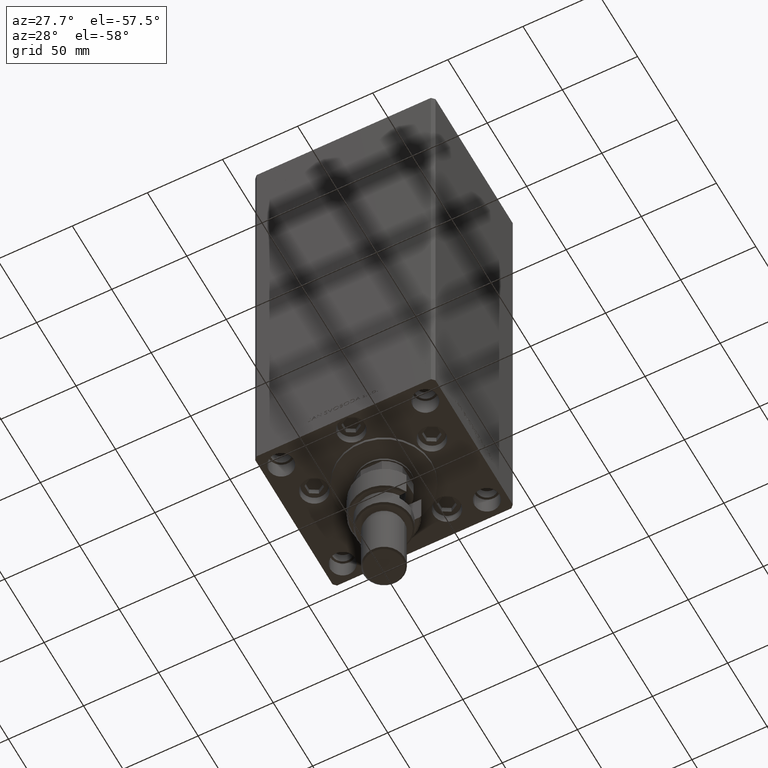
[diagram: clean part render]
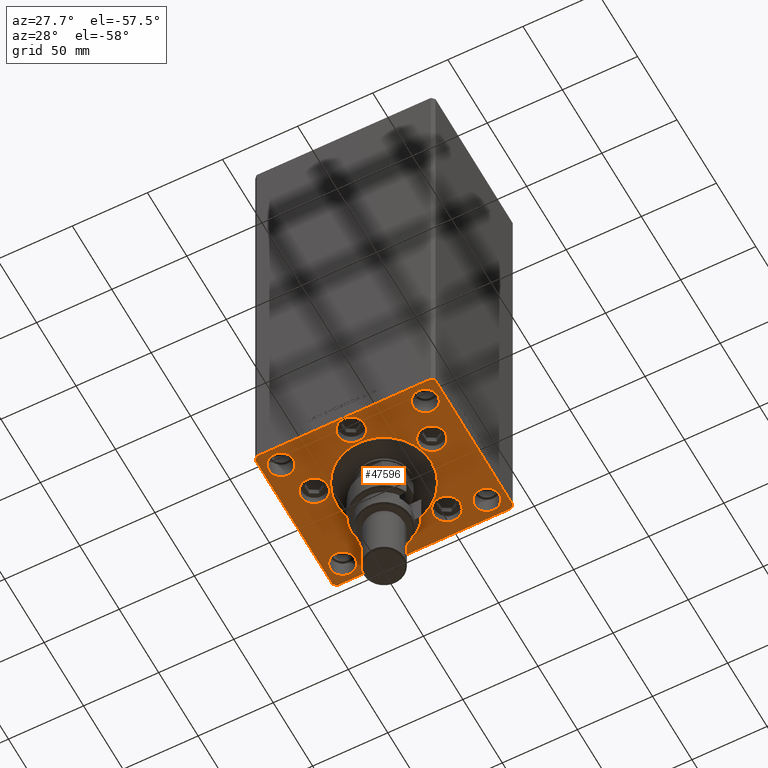
[diagram: same view with one face highlighted and labeled with its STEP entity id]
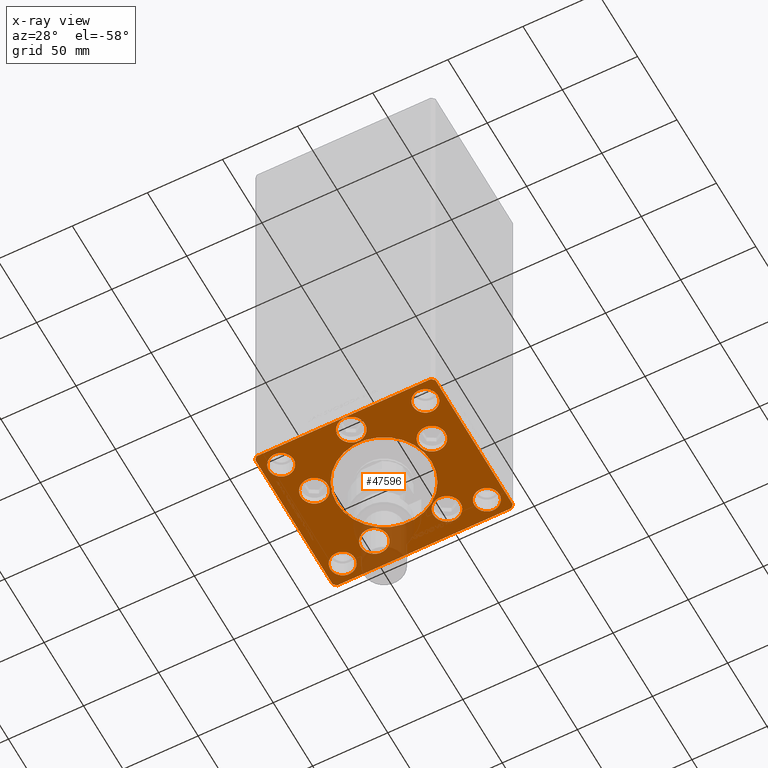
[diagram: x-ray of the same camera — body ghosted, the highlighted face saturated]
A machine part, auxiliary view. The second image highlights one B-rep face of the part: STEP entity #47596.
The next image is the same camera in x-ray: the body ghosted, the highlighted face saturated — about 8% of this face is hidden behind the body in this view.
In plain terms, the highlighted planar face has unit normal (0, 0, -1).
Its self-contained STEP definition (entity closure, byte-faithful):
#6 = AXIS2_PLACEMENT_3D ( 'NONE', #39318, #46713, #35474 ) ;
#232 = DIRECTION ( 'NONE',  ( 0.000000000000000000, 0.000000000000000000, 1.000000000000000000 ) ) ;
#307 = CARTESIAN_POINT ( 'NONE',  ( -48.00000000000000000, 39.00000000000000711, 0.000000000000000000 ) ) ;
#498 = CARTESIAN_POINT ( 'NONE',  ( -60.00000000000000000, 49.00000000000000000, 0.000000000000000000 ) ) ;
#584 = DIRECTION ( 'NONE',  ( 1.000000000000000000, 0.000000000000000000, 0.000000000000000000 ) ) ;
#802 = FACE_BOUND ( 'NONE', #43565, .T. ) ;
#992 = ORIENTED_EDGE ( 'NONE', *, *, #46146, .F. ) ;
#1304 = FACE_BOUND ( 'NONE', #6074, .T. ) ;
#1633 = DIRECTION ( 'NONE',  ( -1.000000000000000000, -2.392722035830078972E-16, 0.000000000000000000 ) ) ;
#1641 = VERTEX_POINT ( 'NONE', #28113 ) ;
#1687 = EDGE_CURVE ( 'NONE', #20185, #29710, #21928, .T. ) ;
#2598 = DIRECTION ( 'NONE',  ( 1.000000000000000000, 0.000000000000000000, 0.000000000000000000 ) ) ;
#2716 = DIRECTION ( 'NONE',  ( -0.7071067811865536790, 0.7071067811865414665, 0.000000000000000000 ) ) ;
#2821 = DIRECTION ( 'NONE',  ( 0.000000000000000000, 0.000000000000000000, 1.000000000000000000 ) ) ;
#3028 = EDGE_CURVE ( 'NONE', #31387, #41270, #18699, .T. ) ;
#3244 = CARTESIAN_POINT ( 'NONE',  ( -56.24999999999999289, 39.00000000000000711, 0.000000000000000000 ) ) ;
#4005 = AXIS2_PLACEMENT_3D ( 'NONE', #33593, #14016, #41978 ) ;
#4160 = EDGE_CURVE ( 'NONE', #42355, #30331, #14699, .T. ) ;
#4307 = DIRECTION ( 'NONE',  ( 1.000000000000000000, 0.000000000000000000, 0.000000000000000000 ) ) ;
#4356 = ORIENTED_EDGE ( 'NONE', *, *, #1687, .F. ) ;
#4408 = DIRECTION ( 'NONE',  ( 0.000000000000000000, 0.000000000000000000, 1.000000000000000000 ) ) ;
#4869 = FACE_BOUND ( 'NONE', #10544, .T. ) ;
#5042 = CIRCLE ( 'NONE', #27762, 9.000000000000001776 ) ;
#5171 = EDGE_CURVE ( 'NONE', #15028, #9731, #16339, .T. ) ;
#5408 = EDGE_LOOP ( 'NONE', ( #27216, #49950 ) ) ;
#5550 = DIRECTION ( 'NONE',  ( 0.000000000000000000, 0.000000000000000000, 1.000000000000000000 ) ) ;
#5791 = CARTESIAN_POINT ( 'NONE',  ( 60.00000000000001421, 49.00000000000002842, 0.000000000000000000 ) ) ;
#5812 = DIRECTION ( 'NONE',  ( 0.7071067811865474617, -0.7071067811865474617, 0.000000000000000000 ) ) ;
#5928 = CARTESIAN_POINT ( 'NONE',  ( 24.19288941894913592, 33.71874999999998579, 0.000000000000000000 ) ) ;
#6030 = AXIS2_PLACEMENT_3D ( 'NONE', #307, #47099, #46618 ) ;
#6074 = EDGE_LOOP ( 'NONE', ( #43419, #48918 ) ) ;
#6170 = DIRECTION ( 'NONE',  ( 0.000000000000000000, 0.000000000000000000, 1.000000000000000000 ) ) ;
#6244 = CARTESIAN_POINT ( 'NONE',  ( 31.50000000000000000, -3.081256486593065689E-15, 0.000000000000000000 ) ) ;
#6814 = VECTOR ( 'NONE', #42282, 1000.000000000000000 ) ;
#7723 = CARTESIAN_POINT ( 'NONE',  ( -57.99999999999998579, 50.99999999999997868, 0.000000000000000000 ) ) ;
#7735 = ORIENTED_EDGE ( 'NONE', *, *, #25390, .F. ) ;
#8063 = ORIENTED_EDGE ( 'NONE', *, *, #35400, .F. ) ;
#8231 = DIRECTION ( 'NONE',  ( 0.000000000000000000, 0.000000000000000000, 1.000000000000000000 ) ) ;
#8463 = ORIENTED_EDGE ( 'NONE', *, *, #45598, .T. ) ;
#8608 = EDGE_CURVE ( 'NONE', #9731, #15028, #20975, .T. ) ;
#8651 = CARTESIAN_POINT ( 'NONE',  ( 39.75000000000000711, -39.00000000000001421, 0.000000000000000000 ) ) ;
#8685 = LINE ( 'NONE', #28781, #9936 ) ;
#8696 = DIRECTION ( 'NONE',  ( 1.000000000000000000, 0.000000000000000000, 0.000000000000000000 ) ) ;
#9422 = CARTESIAN_POINT ( 'NONE',  ( -30.12657522565563539, -13.83333333333332860, 0.000000000000000000 ) ) ;
#9616 = VERTEX_POINT ( 'NONE', #27477 ) ;
#9708 = ORIENTED_EDGE ( 'NONE', *, *, #10223, .T. ) ;
#9731 = VERTEX_POINT ( 'NONE', #8651 ) ;
#9750 = DIRECTION ( 'NONE',  ( 1.000000000000000000, 0.000000000000000000, 0.000000000000000000 ) ) ;
#9903 = CIRCLE ( 'NONE', #23683, 31.50000000000000000 ) ;
#9936 = VECTOR ( 'NONE', #47361, 1000.000000000000000 ) ;
#10003 = CARTESIAN_POINT ( 'NONE',  ( 48.00000000000000000, 39.00000000000000000, 0.000000000000000000 ) ) ;
#10015 = DIRECTION ( 'NONE',  ( 0.000000000000000000, 0.000000000000000000, 1.000000000000000000 ) ) ;
#10223 = EDGE_CURVE ( 'NONE', #30454, #31401, #22039, .T. ) ;
#10523 = ORIENTED_EDGE ( 'NONE', *, *, #21485, .F. ) ;
#10544 = EDGE_LOOP ( 'NONE', ( #4356, #12190 ) ) ;
#10766 = AXIS2_PLACEMENT_3D ( 'NONE', #46894, #8231, #584 ) ;
#10952 = CARTESIAN_POINT ( 'NONE',  ( 39.12657522565563539, -13.83333333333332860, 0.000000000000000000 ) ) ;
#11063 = DIRECTION ( 'NONE',  ( 0.000000000000000000, 0.000000000000000000, 1.000000000000000000 ) ) ;
#11080 = ORIENTED_EDGE ( 'NONE', *, *, #42878, .F. ) ;
#11323 = AXIS2_PLACEMENT_3D ( 'NONE', #5928, #6170, #2598 ) ;
#11470 = CIRCLE ( 'NONE', #39903, 9.000000000000000000 ) ;
#11502 = DIRECTION ( 'NONE',  ( 0.000000000000000000, 0.000000000000000000, 1.000000000000000000 ) ) ;
#11796 = ORIENTED_EDGE ( 'NONE', *, *, #27417, .T. ) ;
#12142 = CIRCLE ( 'NONE', #40579, 9.000000000000001776 ) ;
#12190 = ORIENTED_EDGE ( 'NONE', *, *, #43355, .F. ) ;
#12477 = AXIS2_PLACEMENT_3D ( 'NONE', #10003, #11502, #43027 ) ;
#12841 = ORIENTED_EDGE ( 'NONE', *, *, #8608, .F. ) ;
#12920 = DIRECTION ( 'NONE',  ( 1.000000000000000000, 0.000000000000000000, 0.000000000000000000 ) ) ;
#13138 = EDGE_LOOP ( 'NONE', ( #49214, #17163 ) ) ;
#13234 = DIRECTION ( 'NONE',  ( 1.000000000000000000, 0.000000000000000000, 0.000000000000000000 ) ) ;
#13334 = CARTESIAN_POINT ( 'NONE',  ( -39.12657522565563539, -13.83333333333332860, 0.000000000000000000 ) ) ;
#13733 = ORIENTED_EDGE ( 'NONE', *, *, #31055, .F. ) ;
#13861 = VERTEX_POINT ( 'NONE', #25897 ) ;
#13869 = LINE ( 'NONE', #14119, #18932 ) ;
#14016 = DIRECTION ( 'NONE',  ( 0.000000000000000000, 0.000000000000000000, 1.000000000000000000 ) ) ;
#14119 = CARTESIAN_POINT ( 'NONE',  ( -58.00000000000000711, -51.00000000000002842, 0.000000000000000000 ) ) ;
#14345 = ORIENTED_EDGE ( 'NONE', *, *, #3028, .F. ) ;
#14627 = EDGE_CURVE ( 'NONE', #13861, #9616, #12142, .T. ) ;
#14699 = CIRCLE ( 'NONE', #30939, 8.249999999999992895 ) ;
#15028 = VERTEX_POINT ( 'NONE', #45569 ) ;
#15384 = CIRCLE ( 'NONE', #11323, 9.000000000000001776 ) ;
#15495 = CIRCLE ( 'NONE', #44726, 8.249999999999992895 ) ;
#15562 = LINE ( 'NONE', #49933, #6814 ) ;
#15901 = VERTEX_POINT ( 'NONE', #18155 ) ;
#15939 = VERTEX_POINT ( 'NONE', #7723 ) ;
#16146 = CIRCLE ( 'NONE', #4005, 9.000000000000001776 ) ;
#16241 = CARTESIAN_POINT ( 'NONE',  ( 48.00000000000000000, 39.00000000000000000, 0.000000000000000000 ) ) ;
#16292 = AXIS2_PLACEMENT_3D ( 'NONE', #38509, #38258, #27314 ) ;
#16319 = FACE_BOUND ( 'NONE', #46852, .T. ) ;
#16339 = CIRCLE ( 'NONE', #41538, 8.249999999999992895 ) ;
#16641 = DIRECTION ( 'NONE',  ( 1.000000000000000000, 0.000000000000000000, 0.000000000000000000 ) ) ;
#16787 = DIRECTION ( 'NONE',  ( 0.000000000000000000, 0.000000000000000000, 1.000000000000000000 ) ) ;
#17072 = FACE_BOUND ( 'NONE', #25289, .T. ) ;
#17097 = CIRCLE ( 'NONE', #16292, 31.50000000000000000 ) ;
#17163 = ORIENTED_EDGE ( 'NONE', *, *, #38920, .F. ) ;
#17328 = DIRECTION ( 'NONE',  ( 1.000000000000000000, 0.000000000000000000, 0.000000000000000000 ) ) ;
#17421 = VECTOR ( 'NONE', #1633, 1000.000000000000000 ) ;
#17504 = CARTESIAN_POINT ( 'NONE',  ( -48.00000000000000000, -39.00000000000001421, 0.000000000000000000 ) ) ;
#17838 = EDGE_LOOP ( 'NONE', ( #11796, #27342, #8463, #25478, #9708, #27745, #28530, #48170 ) ) ;
#18002 = VERTEX_POINT ( 'NONE', #9422 ) ;
#18155 = CARTESIAN_POINT ( 'NONE',  ( 9.000000000000000000, -41.50000000000000000, 0.000000000000000000 ) ) ;
#18699 = CIRCLE ( 'NONE', #36630, 8.249999999999992895 ) ;
#18932 = VECTOR ( 'NONE', #25570, 1000.000000000000000 ) ;
#19512 = CARTESIAN_POINT ( 'NONE',  ( -48.12657522565563539, -13.83333333333332682, 0.000000000000000000 ) ) ;
#19676 = DIRECTION ( 'NONE',  ( 0.000000000000000000, 0.000000000000000000, 1.000000000000000000 ) ) ;
#19765 = CARTESIAN_POINT ( 'NONE',  ( 58.00000000000001421, -50.99999999999992184, 0.000000000000000000 ) ) ;
#20170 = CARTESIAN_POINT ( 'NONE',  ( 56.24999999999999289, 39.00000000000000000, 0.000000000000000000 ) ) ;
#20185 = VERTEX_POINT ( 'NONE', #23790 ) ;
#20342 = DIRECTION ( 'NONE',  ( 0.000000000000000000, 0.000000000000000000, 1.000000000000000000 ) ) ;
#20363 = EDGE_CURVE ( 'NONE', #30605, #40355, #9903, .T. ) ;
#20375 = FACE_BOUND ( 'NONE', #13138, .T. ) ;
#20408 = ORIENTED_EDGE ( 'NONE', *, *, #42441, .F. ) ;
#20630 = CIRCLE ( 'NONE', #27155, 9.000000000000001776 ) ;
#20975 = CIRCLE ( 'NONE', #44534, 8.249999999999992895 ) ;
#21212 = CARTESIAN_POINT ( 'NONE',  ( 58.00000000000000000, 51.00000000000000711, 0.000000000000000000 ) ) ;
#21485 = EDGE_CURVE ( 'NONE', #15901, #39721, #48146, .T. ) ;
#21928 = CIRCLE ( 'NONE', #6, 9.000000000000000000 ) ;
#22039 = LINE ( 'NONE', #5791, #26749 ) ;
#22100 = VECTOR ( 'NONE', #50068, 1000.000000000000114 ) ;
#22260 = CARTESIAN_POINT ( 'NONE',  ( 48.00000000000000000, -39.00000000000001421, 0.000000000000000000 ) ) ;
#22320 = CARTESIAN_POINT ( 'NONE',  ( -31.50000000000000000, -6.938893903907228378E-15, 0.000000000000000000 ) ) ;
#22380 = CARTESIAN_POINT ( 'NONE',  ( -39.75000000000000711, -39.00000000000001421, 0.000000000000000000 ) ) ;
#22944 = AXIS2_PLACEMENT_3D ( 'NONE', #40228, #43285, #17328 ) ;
#22990 = DIRECTION ( 'NONE',  ( 0.000000000000000000, 0.000000000000000000, 1.000000000000000000 ) ) ;
#23147 = VERTEX_POINT ( 'NONE', #35196 ) ;
#23493 = DIRECTION ( 'NONE',  ( 1.000000000000000000, 0.000000000000000000, 0.000000000000000000 ) ) ;
#23547 = EDGE_CURVE ( 'NONE', #32256, #1641, #27269, .T. ) ;
#23683 = AXIS2_PLACEMENT_3D ( 'NONE', #39681, #20342, #13234 ) ;
#23790 = CARTESIAN_POINT ( 'NONE',  ( -15.19288941894913592, 33.71874999999998579, 0.000000000000000000 ) ) ;
#23950 = FACE_BOUND ( 'NONE', #45613, .T. ) ;
#24180 = EDGE_CURVE ( 'NONE', #47209, #25235, #13869, .T. ) ;
#25010 = DIRECTION ( 'NONE',  ( 0.000000000000000000, 0.000000000000000000, 1.000000000000000000 ) ) ;
#25025 = VERTEX_POINT ( 'NONE', #26077 ) ;
#25180 = DIRECTION ( 'NONE',  ( 1.000000000000000000, 0.000000000000000000, 0.000000000000000000 ) ) ;
#25235 = VERTEX_POINT ( 'NONE', #47918 ) ;
#25289 = EDGE_LOOP ( 'NONE', ( #10523, #13733 ) ) ;
#25390 = EDGE_CURVE ( 'NONE', #25025, #46654, #39310, .T. ) ;
#25403 = EDGE_CURVE ( 'NONE', #30331, #42355, #48304, .T. ) ;
#25478 = ORIENTED_EDGE ( 'NONE', *, *, #47561, .T. ) ;
#25570 = DIRECTION ( 'NONE',  ( 1.000000000000000000, 9.570888143320313916E-16, 0.000000000000000000 ) ) ;
#25897 = CARTESIAN_POINT ( 'NONE',  ( 33.19288941894913592, 33.71874999999998579, 0.000000000000000000 ) ) ;
#26077 = CARTESIAN_POINT ( 'NONE',  ( 39.75000000000000711, 39.00000000000000000, 0.000000000000000000 ) ) ;
#26147 = EDGE_CURVE ( 'NONE', #31401, #15939, #40793, .T. ) ;
#26185 = EDGE_CURVE ( 'NONE', #45652, #18002, #20630, .T. ) ;
#26749 = VECTOR ( 'NONE', #2716, 1000.000000000000000 ) ;
#27155 = AXIS2_PLACEMENT_3D ( 'NONE', #13334, #10015, #16641 ) ;
#27216 = ORIENTED_EDGE ( 'NONE', *, *, #4160, .F. ) ;
#27269 = LINE ( 'NONE', #46846, #48223 ) ;
#27314 = DIRECTION ( 'NONE',  ( 1.000000000000000000, 0.000000000000000000, 0.000000000000000000 ) ) ;
#27342 = ORIENTED_EDGE ( 'NONE', *, *, #24180, .T. ) ;
#27417 = EDGE_CURVE ( 'NONE', #1641, #47209, #48043, .T. ) ;
#27477 = CARTESIAN_POINT ( 'NONE',  ( 15.19288941894913236, 33.71874999999998579, 0.000000000000000000 ) ) ;
#27639 = CARTESIAN_POINT ( 'NONE',  ( 60.00000000000001421, 49.00000000000002842, 0.000000000000000000 ) ) ;
#27745 = ORIENTED_EDGE ( 'NONE', *, *, #26147, .T. ) ;
#27762 = AXIS2_PLACEMENT_3D ( 'NONE', #10952, #2821, #41975 ) ;
#27779 = CARTESIAN_POINT ( 'NONE',  ( 48.00000000000000000, -39.00000000000001421, 0.000000000000000000 ) ) ;
#28113 = CARTESIAN_POINT ( 'NONE',  ( -60.00000000000000000, -49.00000000000004263, 0.000000000000000000 ) ) ;
#28256 = FACE_BOUND ( 'NONE', #43189, .T. ) ;
#28530 = ORIENTED_EDGE ( 'NONE', *, *, #29222, .T. ) ;
#28781 = CARTESIAN_POINT ( 'NONE',  ( 60.00000000000001421, -48.99999999999992895, 0.000000000000000000 ) ) ;
#29222 = EDGE_CURVE ( 'NONE', #15939, #32256, #15562, .T. ) ;
#29644 = AXIS2_PLACEMENT_3D ( 'NONE', #49172, #25010, #9750 ) ;
#29710 = VERTEX_POINT ( 'NONE', #42590 ) ;
#30331 = VERTEX_POINT ( 'NONE', #3244 ) ;
#30454 = VERTEX_POINT ( 'NONE', #27639 ) ;
#30605 = VERTEX_POINT ( 'NONE', #6244 ) ;
#30708 = LINE ( 'NONE', #19765, #22100 ) ;
#30939 = AXIS2_PLACEMENT_3D ( 'NONE', #39945, #16787, #25180 ) ;
#31055 = EDGE_CURVE ( 'NONE', #39721, #15901, #34512, .T. ) ;
#31108 = DIRECTION ( 'NONE',  ( 1.000000000000000000, 0.000000000000000000, 0.000000000000000000 ) ) ;
#31387 = VERTEX_POINT ( 'NONE', #22380 ) ;
#31401 = VERTEX_POINT ( 'NONE', #47544 ) ;
#32007 = CARTESIAN_POINT ( 'NONE',  ( -60.00000000000000000, -49.00000000000004263, 0.000000000000000000 ) ) ;
#32044 = VECTOR ( 'NONE', #5812, 1000.000000000000114 ) ;
#32256 = VERTEX_POINT ( 'NONE', #498 ) ;
#32600 = DIRECTION ( 'NONE',  ( 0.000000000000000000, 0.000000000000000000, 1.000000000000000000 ) ) ;
#33593 = CARTESIAN_POINT ( 'NONE',  ( -39.12657522565563539, -13.83333333333332860, 0.000000000000000000 ) ) ;
#33907 = CARTESIAN_POINT ( 'NONE',  ( 24.19288941894913592, 33.71874999999998579, 0.000000000000000000 ) ) ;
#34165 = DIRECTION ( 'NONE',  ( 1.000000000000000000, 0.000000000000000000, 0.000000000000000000 ) ) ;
#34512 = CIRCLE ( 'NONE', #29644, 9.000000000000000000 ) ;
#34861 = EDGE_CURVE ( 'NONE', #18002, #45652, #16146, .T. ) ;
#34914 = ORIENTED_EDGE ( 'NONE', *, *, #5171, .F. ) ;
#35196 = CARTESIAN_POINT ( 'NONE',  ( 48.12657522565563539, -13.83333333333332860, 0.000000000000000000 ) ) ;
#35400 = EDGE_CURVE ( 'NONE', #44300, #23147, #36441, .T. ) ;
#35474 = DIRECTION ( 'NONE',  ( 1.000000000000000000, 0.000000000000000000, 0.000000000000000000 ) ) ;
#36441 = CIRCLE ( 'NONE', #37275, 9.000000000000001776 ) ;
#36630 = AXIS2_PLACEMENT_3D ( 'NONE', #38740, #4408, #31108 ) ;
#37245 = CARTESIAN_POINT ( 'NONE',  ( -9.000000000000000000, -41.50000000000000000, 0.000000000000000000 ) ) ;
#37275 = AXIS2_PLACEMENT_3D ( 'NONE', #41552, #41293, #34165 ) ;
#38056 = EDGE_LOOP ( 'NONE', ( #20408, #39343 ) ) ;
#38258 = DIRECTION ( 'NONE',  ( 0.000000000000000000, 0.000000000000000000, 1.000000000000000000 ) ) ;
#38312 = CARTESIAN_POINT ( 'NONE',  ( -56.24999999999999289, -39.00000000000001421, 0.000000000000000000 ) ) ;
#38462 = DIRECTION ( 'NONE',  ( 0.000000000000000000, -1.000000000000000000, 0.000000000000000000 ) ) ;
#38509 = CARTESIAN_POINT ( 'NONE',  ( 0.000000000000000000, -6.938893903907228378E-15, 0.000000000000000000 ) ) ;
#38740 = CARTESIAN_POINT ( 'NONE',  ( -48.00000000000000000, -39.00000000000001421, 0.000000000000000000 ) ) ;
#38771 = DIRECTION ( 'NONE',  ( 1.000000000000000000, 0.000000000000000000, 0.000000000000000000 ) ) ;
#38920 = EDGE_CURVE ( 'NONE', #9616, #13861, #15384, .T. ) ;
#38946 = AXIS2_PLACEMENT_3D ( 'NONE', #16241, #232, #4307 ) ;
#39310 = CIRCLE ( 'NONE', #12477, 8.249999999999992895 ) ;
#39318 = CARTESIAN_POINT ( 'NONE',  ( -24.19288941894913592, 33.71874999999998579, 0.000000000000000000 ) ) ;
#39343 = ORIENTED_EDGE ( 'NONE', *, *, #20363, .F. ) ;
#39681 = CARTESIAN_POINT ( 'NONE',  ( 0.000000000000000000, -6.938893903907228378E-15, 0.000000000000000000 ) ) ;
#39713 = FACE_BOUND ( 'NONE', #38056, .T. ) ;
#39721 = VERTEX_POINT ( 'NONE', #37245 ) ;
#39903 = AXIS2_PLACEMENT_3D ( 'NONE', #49981, #19676, #23493 ) ;
#39945 = CARTESIAN_POINT ( 'NONE',  ( -48.00000000000000000, 39.00000000000000711, 0.000000000000000000 ) ) ;
#40161 = EDGE_CURVE ( 'NONE', #46654, #25025, #42218, .T. ) ;
#40228 = CARTESIAN_POINT ( 'NONE',  ( 0.000000000000000000, 0.000000000000000000, 0.000000000000000000 ) ) ;
#40355 = VERTEX_POINT ( 'NONE', #22320 ) ;
#40465 = PLANE ( 'NONE',  #22944 ) ;
#40579 = AXIS2_PLACEMENT_3D ( 'NONE', #33907, #22990, #42315 ) ;
#40793 = LINE ( 'NONE', #21212, #17421 ) ;
#41270 = VERTEX_POINT ( 'NONE', #38312 ) ;
#41293 = DIRECTION ( 'NONE',  ( 0.000000000000000000, 0.000000000000000000, 1.000000000000000000 ) ) ;
#41538 = AXIS2_PLACEMENT_3D ( 'NONE', #22260, #11063, #38771 ) ;
#41552 = CARTESIAN_POINT ( 'NONE',  ( 39.12657522565563539, -13.83333333333332860, 0.000000000000000000 ) ) ;
#41975 = DIRECTION ( 'NONE',  ( 1.000000000000000000, 0.000000000000000000, 0.000000000000000000 ) ) ;
#41978 = DIRECTION ( 'NONE',  ( 1.000000000000000000, 0.000000000000000000, 0.000000000000000000 ) ) ;
#42218 = CIRCLE ( 'NONE', #38946, 8.249999999999992895 ) ;
#42282 = DIRECTION ( 'NONE',  ( -0.7071067811865536790, -0.7071067811865414665, 0.000000000000000000 ) ) ;
#42315 = DIRECTION ( 'NONE',  ( 1.000000000000000000, 0.000000000000000000, 0.000000000000000000 ) ) ;
#42355 = VERTEX_POINT ( 'NONE', #44632 ) ;
#42441 = EDGE_CURVE ( 'NONE', #40355, #30605, #17097, .T. ) ;
#42590 = CARTESIAN_POINT ( 'NONE',  ( -33.19288941894913592, 33.71874999999998579, 0.000000000000000000 ) ) ;
#42878 = EDGE_CURVE ( 'NONE', #41270, #31387, #15495, .T. ) ;
#43027 = DIRECTION ( 'NONE',  ( 1.000000000000000000, 0.000000000000000000, 0.000000000000000000 ) ) ;
#43189 = EDGE_LOOP ( 'NONE', ( #14345, #11080 ) ) ;
#43285 = DIRECTION ( 'NONE',  ( -0.000000000000000000, 0.000000000000000000, 1.000000000000000000 ) ) ;
#43355 = EDGE_CURVE ( 'NONE', #29710, #20185, #11470, .T. ) ;
#43401 = ORIENTED_EDGE ( 'NONE', *, *, #40161, .F. ) ;
#43419 = ORIENTED_EDGE ( 'NONE', *, *, #34861, .F. ) ;
#43522 = CARTESIAN_POINT ( 'NONE',  ( 30.12657522565563539, -13.83333333333332682, 0.000000000000000000 ) ) ;
#43565 = EDGE_LOOP ( 'NONE', ( #43401, #7735 ) ) ;
#43858 = CARTESIAN_POINT ( 'NONE',  ( 60.00000000000001421, -48.99999999999992895, 0.000000000000000000 ) ) ;
#44300 = VERTEX_POINT ( 'NONE', #43522 ) ;
#44534 = AXIS2_PLACEMENT_3D ( 'NONE', #27779, #32600, #8696 ) ;
#44632 = CARTESIAN_POINT ( 'NONE',  ( -39.75000000000000711, 39.00000000000000711, 0.000000000000000000 ) ) ;
#44726 = AXIS2_PLACEMENT_3D ( 'NONE', #17504, #5550, #12920 ) ;
#45569 = CARTESIAN_POINT ( 'NONE',  ( 56.24999999999999289, -39.00000000000001421, 0.000000000000000000 ) ) ;
#45598 = EDGE_CURVE ( 'NONE', #25235, #48229, #30708, .T. ) ;
#45613 = EDGE_LOOP ( 'NONE', ( #992, #8063 ) ) ;
#45652 = VERTEX_POINT ( 'NONE', #19512 ) ;
#46146 = EDGE_CURVE ( 'NONE', #23147, #44300, #5042, .T. ) ;
#46174 = CARTESIAN_POINT ( 'NONE',  ( -58.00000000000000711, -51.00000000000002842, 0.000000000000000000 ) ) ;
#46618 = DIRECTION ( 'NONE',  ( 1.000000000000000000, 0.000000000000000000, 0.000000000000000000 ) ) ;
#46654 = VERTEX_POINT ( 'NONE', #20170 ) ;
#46713 = DIRECTION ( 'NONE',  ( 0.000000000000000000, 0.000000000000000000, 1.000000000000000000 ) ) ;
#46846 = CARTESIAN_POINT ( 'NONE',  ( -60.00000000000000000, 49.00000000000000000, 0.000000000000000000 ) ) ;
#46852 = EDGE_LOOP ( 'NONE', ( #34914, #12841 ) ) ;
#46894 = CARTESIAN_POINT ( 'NONE',  ( 0.000000000000000000, -41.50000000000000000, 0.000000000000000000 ) ) ;
#47099 = DIRECTION ( 'NONE',  ( 0.000000000000000000, 0.000000000000000000, 1.000000000000000000 ) ) ;
#47209 = VERTEX_POINT ( 'NONE', #46174 ) ;
#47361 = DIRECTION ( 'NONE',  ( 0.000000000000000000, 1.000000000000000000, 0.000000000000000000 ) ) ;
#47544 = CARTESIAN_POINT ( 'NONE',  ( 58.00000000000000000, 51.00000000000000711, 0.000000000000000000 ) ) ;
#47561 = EDGE_CURVE ( 'NONE', #48229, #30454, #8685, .T. ) ;
#47596 = ADVANCED_FACE ( 'NONE', ( #39713, #4869, #20375, #23950, #17072, #1304, #802, #47607, #28256, #16319, #47856 ), #40465, .T. ) ;
#47607 = FACE_BOUND ( 'NONE', #5408, .T. ) ;
#47856 = FACE_OUTER_BOUND ( 'NONE', #17838, .T. ) ;
#47918 = CARTESIAN_POINT ( 'NONE',  ( 58.00000000000001421, -50.99999999999992184, 0.000000000000000000 ) ) ;
#48043 = LINE ( 'NONE', #32007, #32044 ) ;
#48146 = CIRCLE ( 'NONE', #10766, 9.000000000000000000 ) ;
#48170 = ORIENTED_EDGE ( 'NONE', *, *, #23547, .T. ) ;
#48223 = VECTOR ( 'NONE', #38462, 1000.000000000000000 ) ;
#48229 = VERTEX_POINT ( 'NONE', #43858 ) ;
#48304 = CIRCLE ( 'NONE', #6030, 8.249999999999992895 ) ;
#48918 = ORIENTED_EDGE ( 'NONE', *, *, #26185, .F. ) ;
#49172 = CARTESIAN_POINT ( 'NONE',  ( 0.000000000000000000, -41.50000000000000000, 0.000000000000000000 ) ) ;
#49214 = ORIENTED_EDGE ( 'NONE', *, *, #14627, .F. ) ;
#49933 = CARTESIAN_POINT ( 'NONE',  ( -57.99999999999998579, 50.99999999999997868, 0.000000000000000000 ) ) ;
#49950 = ORIENTED_EDGE ( 'NONE', *, *, #25403, .F. ) ;
#49981 = CARTESIAN_POINT ( 'NONE',  ( -24.19288941894913592, 33.71874999999998579, 0.000000000000000000 ) ) ;
#50068 = DIRECTION ( 'NONE',  ( 0.7071067811865474617, 0.7071067811865474617, 0.000000000000000000 ) ) ;